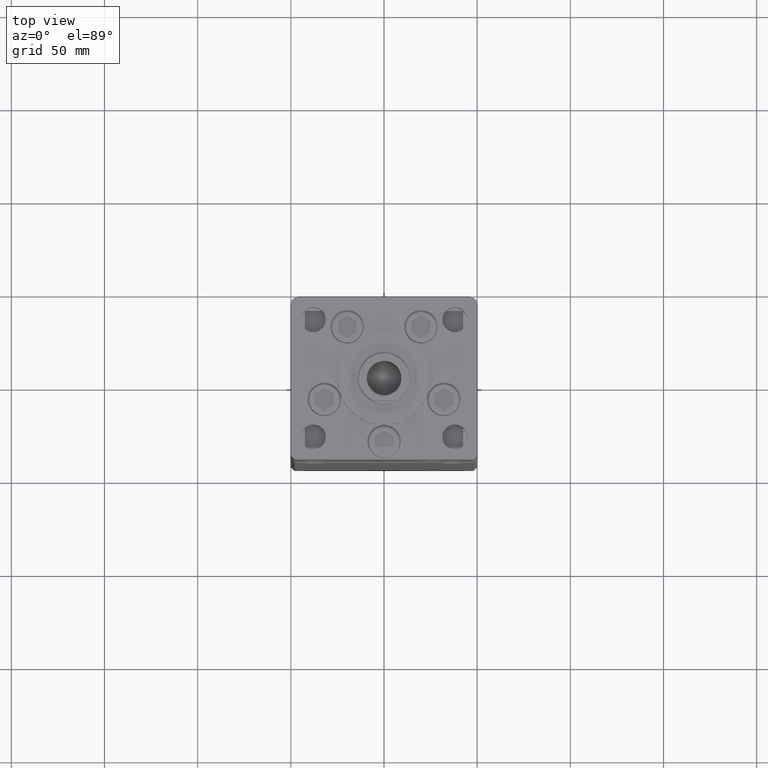
[diagram: clean part render]
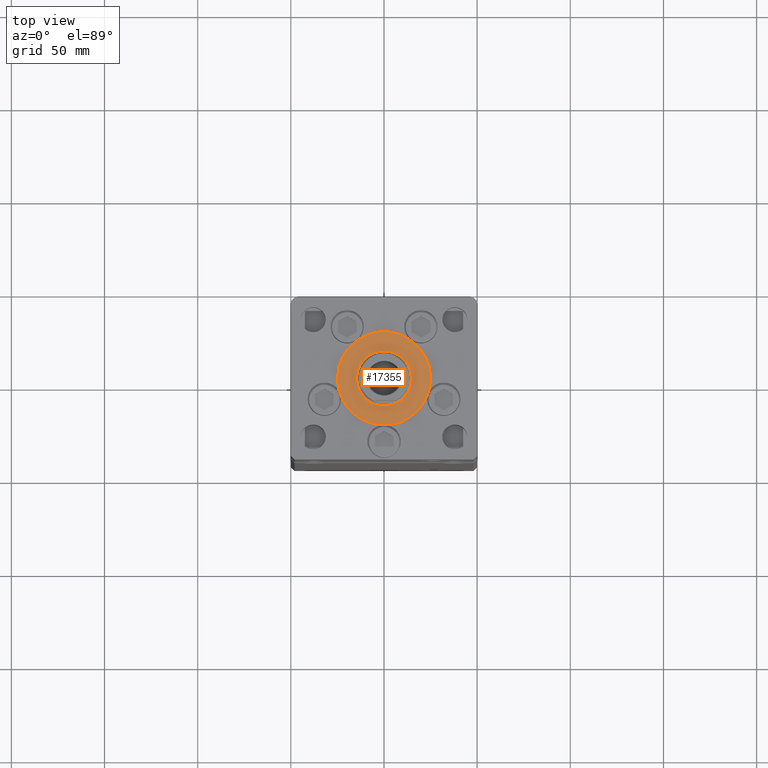
[diagram: same view with one face highlighted and labeled with its STEP entity id]
A machine part, top view. The second image highlights one B-rep face of the part: STEP entity #17355.
In plain terms, the highlighted planar face has unit normal (0, 0, 1).
Its self-contained STEP definition (entity closure, byte-faithful):
#816 = DIRECTION ( 'NONE',  ( 0.000000000000000000, 0.000000000000000000, 1.000000000000000000 ) ) ;
#840 = DIRECTION ( 'NONE',  ( 0.000000000000000000, 0.000000000000000000, 1.000000000000000000 ) ) ;
#2447 = EDGE_CURVE ( 'NONE', #6523, #6031, #9171, .T. ) ;
#4201 = DIRECTION ( 'NONE',  ( 1.000000000000000000, 0.000000000000000000, 0.000000000000000000 ) ) ;
#4554 = DIRECTION ( 'NONE',  ( 0.000000000000000000, 0.000000000000000000, 1.000000000000000000 ) ) ;
#4609 = DIRECTION ( 'NONE',  ( 1.000000000000000000, 0.000000000000000000, 0.000000000000000000 ) ) ;
#6031 = VERTEX_POINT ( 'NONE', #52439 ) ;
#6235 = VERTEX_POINT ( 'NONE', #23828 ) ;
#6523 = VERTEX_POINT ( 'NONE', #47669 ) ;
#9171 = CIRCLE ( 'NONE', #22075, 25.00000000000000000 ) ;
#12493 = EDGE_CURVE ( 'NONE', #6031, #6523, #45548, .T. ) ;
#12791 = CARTESIAN_POINT ( 'NONE',  ( 0.000000000000000000, -6.938893903907228378E-15, 2.000000000000000000 ) ) ;
#13633 = EDGE_CURVE ( 'NONE', #6235, #51282, #43870, .T. ) ;
#16347 = AXIS2_PLACEMENT_3D ( 'NONE', #17757, #840, #4609 ) ;
#16682 = DIRECTION ( 'NONE',  ( 1.000000000000000000, 0.000000000000000000, 0.000000000000000000 ) ) ;
#17355 = ADVANCED_FACE ( 'NONE', ( #20672, #20409 ), #17621, .T. ) ;
#17621 = PLANE ( 'NONE',  #26935 ) ;
#17757 = CARTESIAN_POINT ( 'NONE',  ( 0.000000000000000000, -6.938893903907228378E-15, 2.000000000000000000 ) ) ;
#19759 = EDGE_LOOP ( 'NONE', ( #38493, #44240 ) ) ;
#20409 = FACE_OUTER_BOUND ( 'NONE', #19759, .T. ) ;
#20672 = FACE_BOUND ( 'NONE', #37918, .T. ) ;
#20956 = DIRECTION ( 'NONE',  ( 1.000000000000000000, 0.000000000000000000, 0.000000000000000000 ) ) ;
#22075 = AXIS2_PLACEMENT_3D ( 'NONE', #12791, #32965, #4201 ) ;
#23270 = ORIENTED_EDGE ( 'NONE', *, *, #13633, .F. ) ;
#23828 = CARTESIAN_POINT ( 'NONE',  ( -14.75000000000000178, -5.132539875164881787E-15, 2.000000000000000000 ) ) ;
#26935 = AXIS2_PLACEMENT_3D ( 'NONE', #33032, #38330, #36811 ) ;
#27252 = ORIENTED_EDGE ( 'NONE', *, *, #37719, .F. ) ;
#32965 = DIRECTION ( 'NONE',  ( 0.000000000000000000, 0.000000000000000000, 1.000000000000000000 ) ) ;
#33032 = CARTESIAN_POINT ( 'NONE',  ( 0.000000000000000000, -6.938893903907228378E-15, 2.000000000000000000 ) ) ;
#35938 = CIRCLE ( 'NONE', #47956, 14.75000000000000178 ) ;
#36811 = DIRECTION ( 'NONE',  ( 1.000000000000000000, 0.000000000000000000, -0.000000000000000000 ) ) ;
#37127 = CARTESIAN_POINT ( 'NONE',  ( 0.000000000000000000, -6.938893903907228378E-15, 2.000000000000000000 ) ) ;
#37719 = EDGE_CURVE ( 'NONE', #51282, #6235, #35938, .T. ) ;
#37918 = EDGE_LOOP ( 'NONE', ( #27252, #23270 ) ) ;
#38330 = DIRECTION ( 'NONE',  ( 0.000000000000000000, 0.000000000000000000, 1.000000000000000000 ) ) ;
#38493 = ORIENTED_EDGE ( 'NONE', *, *, #12493, .T. ) ;
#40468 = AXIS2_PLACEMENT_3D ( 'NONE', #48637, #4554, #20956 ) ;
#43870 = CIRCLE ( 'NONE', #40468, 14.75000000000000178 ) ;
#44240 = ORIENTED_EDGE ( 'NONE', *, *, #2447, .T. ) ;
#45548 = CIRCLE ( 'NONE', #16347, 25.00000000000000000 ) ;
#47669 = CARTESIAN_POINT ( 'NONE',  ( 25.00000000000000000, -3.877276906038844941E-15, 2.000000000000000000 ) ) ;
#47956 = AXIS2_PLACEMENT_3D ( 'NONE', #37127, #816, #16682 ) ;
#48637 = CARTESIAN_POINT ( 'NONE',  ( 0.000000000000000000, -6.938893903907228378E-15, 2.000000000000000000 ) ) ;
#51152 = CARTESIAN_POINT ( 'NONE',  ( 14.75000000000000178, -6.938893903907228378E-15, 2.000000000000000000 ) ) ;
#51282 = VERTEX_POINT ( 'NONE', #51152 ) ;
#52439 = CARTESIAN_POINT ( 'NONE',  ( -25.00000000000000000, -6.938893903907228378E-15, 2.000000000000000000 ) ) ;